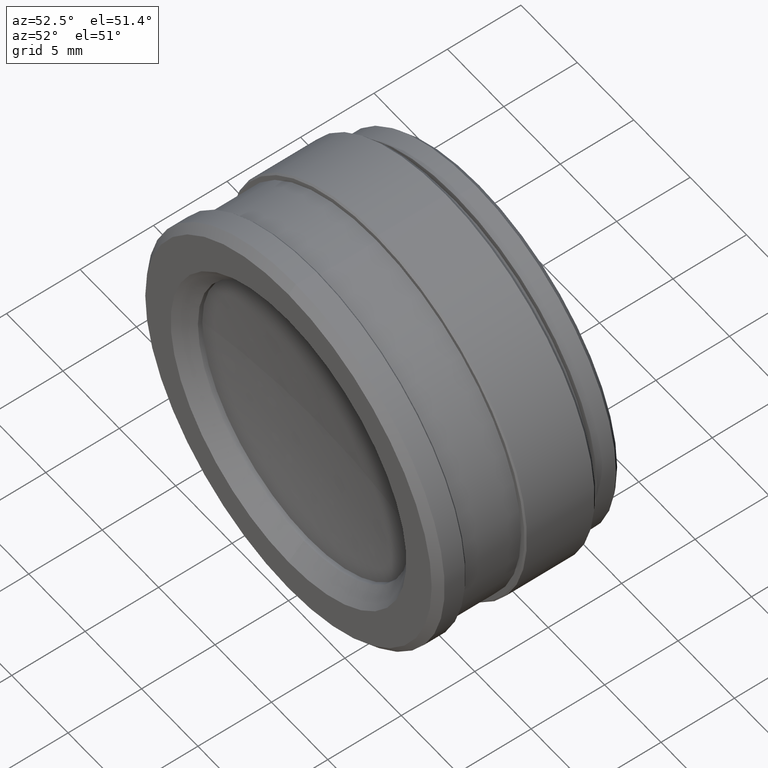
[diagram: clean part render]
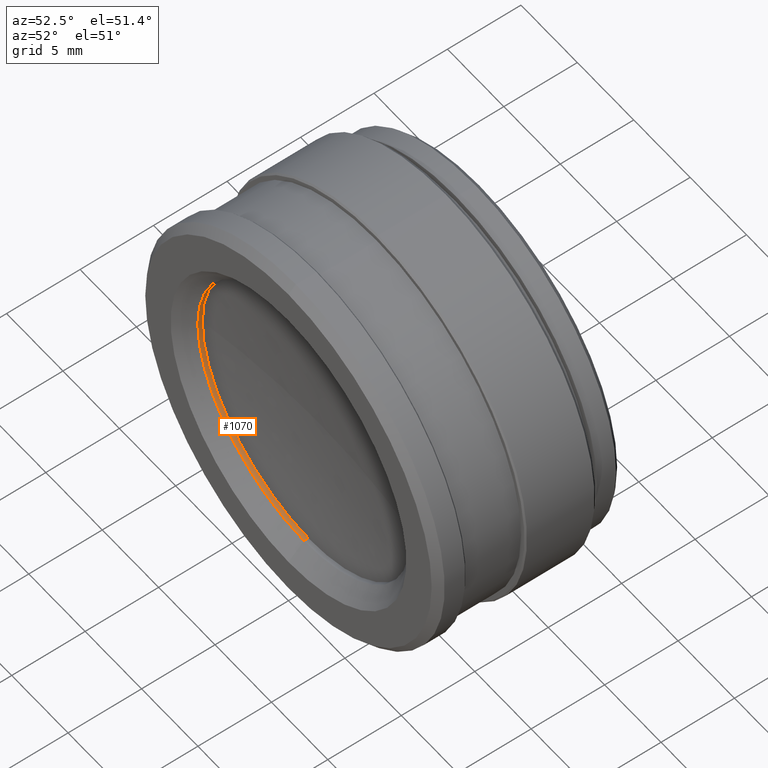
[diagram: same view with one face highlighted and labeled with its STEP entity id]
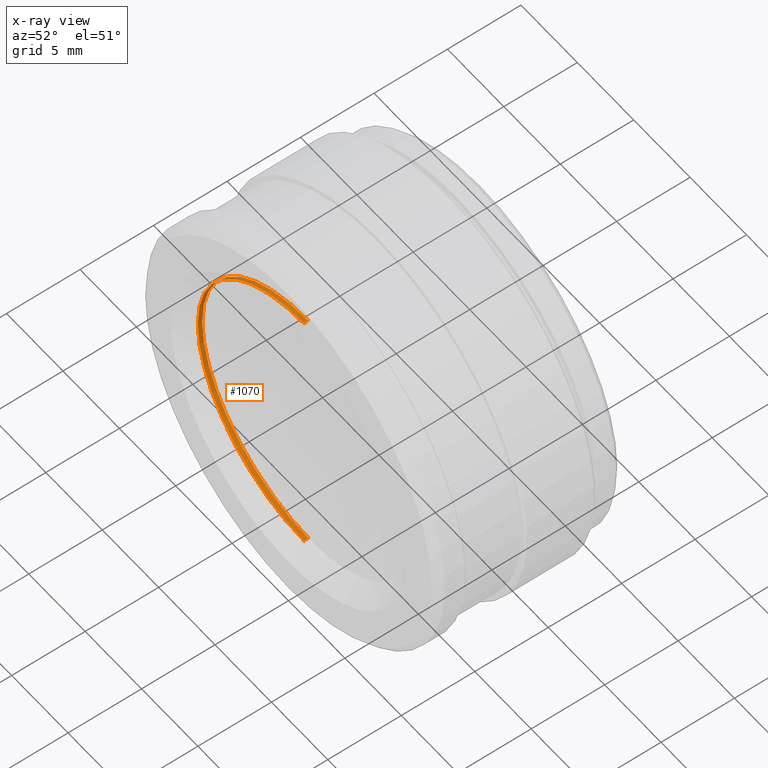
[diagram: x-ray of the same camera — body ghosted, the highlighted face saturated]
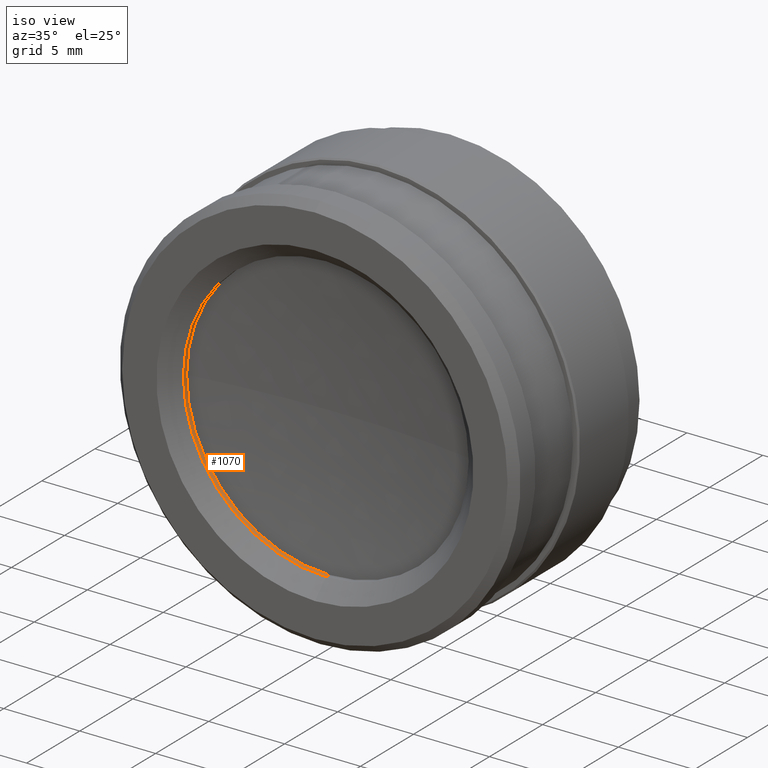
[diagram: same view with one face highlighted and labeled with its STEP entity id]
A machine part, auxiliary view. The second image highlights one B-rep face of the part: STEP entity #1070.
The next image is the same camera in x-ray: the body ghosted, the highlighted face saturated — about 0% of this face is hidden behind the body in this view.
A second angle (iso view) of the same face is appended — the face is thin or edge-on in the first view.
In plain terms, the highlighted cylindrical surface (partial cylindrical patch) has radius 9.4 mm, axis along (-0, -1, -0).
Its self-contained STEP definition (entity closure, byte-faithful):
#65 = EDGE_LOOP ( 'NONE', ( #774, #1161, #109, #637 ) ) ;
#95 = DIRECTION ( 'NONE',  ( -0.0000000000000000000, -1.000000000000000000, -0.0000000000000000000 ) ) ;
#105 = CARTESIAN_POINT ( 'NONE',  ( 1.151167991200695100E-015, -5.278745474983225000, 9.400000000017826100 ) ) ;
#109 = ORIENTED_EDGE ( 'NONE', *, *, #565, .T. ) ;
#142 = AXIS2_PLACEMENT_3D ( 'NONE', #442, #293, #572 ) ;
#149 = EDGE_CURVE ( 'NONE', #605, #496, #248, .T. ) ;
#152 = DIRECTION ( 'NONE',  ( -0.0000000000000000000, -1.000000000000000000, -0.0000000000000000000 ) ) ;
#168 = FACE_OUTER_BOUND ( 'NONE', #65, .T. ) ;
#182 = AXIS2_PLACEMENT_3D ( 'NONE', #923, #152, #303 ) ;
#192 = CARTESIAN_POINT ( 'NONE',  ( 0.0000000000000000000, 1.347133364283763300, -9.400000000017826100 ) ) ;
#198 = VERTEX_POINT ( 'NONE', #715 ) ;
#206 = AXIS2_PLACEMENT_3D ( 'NONE', #668, #95, #941 ) ;
#210 = CARTESIAN_POINT ( 'NONE',  ( 0.0000000000000000000, -5.278745474983225000, -9.400000000017826100 ) ) ;
#248 = LINE ( 'NONE', #105, #559 ) ;
#293 = DIRECTION ( 'NONE',  ( -0.0000000000000000000, -1.000000000000000000, -0.0000000000000000000 ) ) ;
#303 = DIRECTION ( 'NONE',  ( 0.0000000000000000000, 0.0000000000000000000, -1.000000000000000000 ) ) ;
#315 = CARTESIAN_POINT ( 'NONE',  ( 1.215286417850995300E-015, 1.047133372566805100, 9.400000000017826100 ) ) ;
#357 = DIRECTION ( 'NONE',  ( -0.0000000000000000000, -1.000000000000000000, -0.0000000000000000000 ) ) ;
#414 = EDGE_CURVE ( 'NONE', #605, #540, #687, .T. ) ;
#442 = CARTESIAN_POINT ( 'NONE',  ( 0.0000000000000000000, 1.347133364283763300, 0.0000000000000000000 ) ) ;
#496 = VERTEX_POINT ( 'NONE', #315 ) ;
#540 = VERTEX_POINT ( 'NONE', #192 ) ;
#559 = VECTOR ( 'NONE', #357, 1000.000000000000000 ) ;
#565 = EDGE_CURVE ( 'NONE', #496, #198, #599, .T. ) ;
#572 = DIRECTION ( 'NONE',  ( 0.0000000000000000000, 0.0000000000000000000, -1.000000000000000000 ) ) ;
#599 = CIRCLE ( 'NONE', #182, 9.400000000017826100 ) ;
#605 = VERTEX_POINT ( 'NONE', #1103 ) ;
#637 = ORIENTED_EDGE ( 'NONE', *, *, #1024, .F. ) ;
#657 = LINE ( 'NONE', #210, #889 ) ;
#668 = CARTESIAN_POINT ( 'NONE',  ( 0.0000000000000000000, -5.278745474983225000, 0.0000000000000000000 ) ) ;
#687 = CIRCLE ( 'NONE', #142, 9.400000000017826100 ) ;
#715 = CARTESIAN_POINT ( 'NONE',  ( 0.0000000000000000000, 1.047133372566805100, -9.400000000017826100 ) ) ;
#748 = DIRECTION ( 'NONE',  ( -0.0000000000000000000, -1.000000000000000000, -0.0000000000000000000 ) ) ;
#774 = ORIENTED_EDGE ( 'NONE', *, *, #414, .F. ) ;
#889 = VECTOR ( 'NONE', #748, 1000.000000000000000 ) ;
#892 = CYLINDRICAL_SURFACE ( 'NONE', #206, 9.400000000017826100 ) ;
#923 = CARTESIAN_POINT ( 'NONE',  ( 0.0000000000000000000, 1.047133372566805100, 0.0000000000000000000 ) ) ;
#941 = DIRECTION ( 'NONE',  ( 0.0000000000000000000, 0.0000000000000000000, -1.000000000000000000 ) ) ;
#1024 = EDGE_CURVE ( 'NONE', #540, #198, #657, .T. ) ;
#1070 = ADVANCED_FACE ( 'NONE', ( #168 ), #892, .F. ) ;
#1103 = CARTESIAN_POINT ( 'NONE',  ( 1.151167991200695100E-015, 1.347133364283763300, 9.400000000017826100 ) ) ;
#1161 = ORIENTED_EDGE ( 'NONE', *, *, #149, .T. ) ;